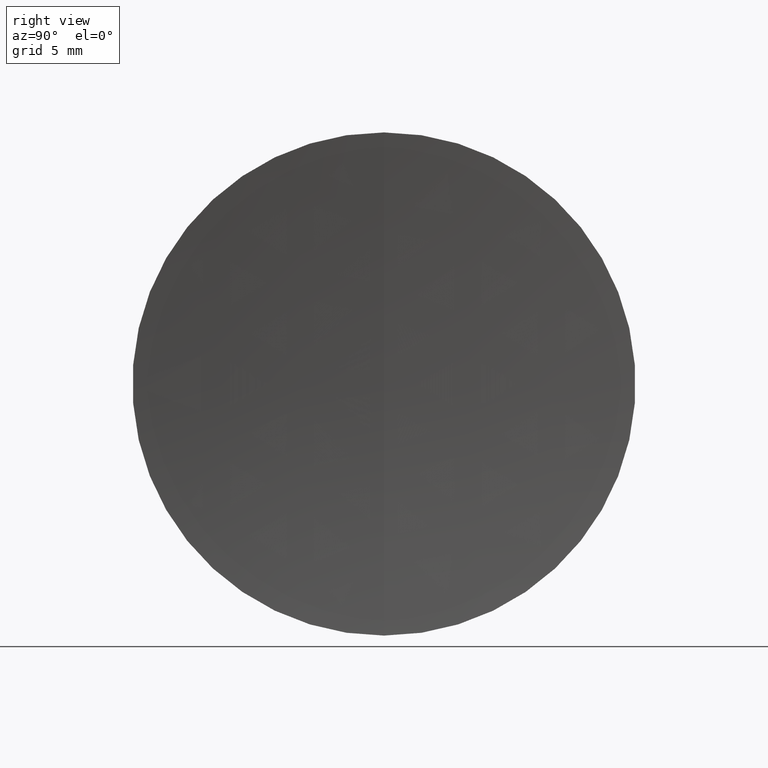
[diagram: clean part render]
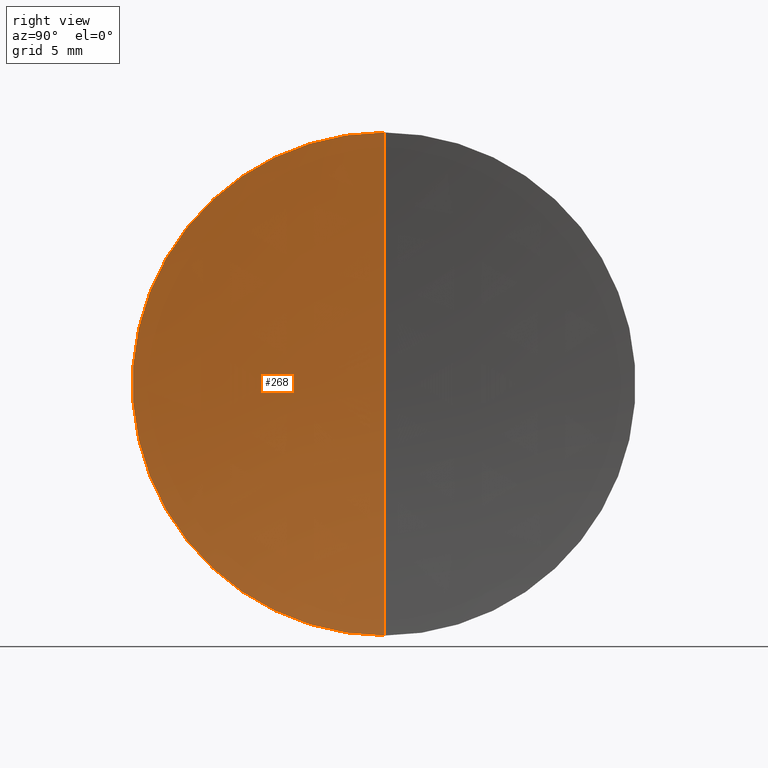
[diagram: same view with one face highlighted and labeled with its STEP entity id]
A machine part, right view. The second image highlights one B-rep face of the part: STEP entity #268.
In plain terms, the highlighted spherical surface has radius 108.6 mm.
Its self-contained STEP definition (entity closure, byte-faithful):
#1 = VERTEX_POINT ( 'NONE', #102 ) ;
#25 = DIRECTION ( 'NONE',  ( 0.0000000000000000000, 1.000000000000000000, -0.0000000000000000000 ) ) ;
#29 = CIRCLE ( 'NONE', #208, 108.5999999999999900 ) ;
#32 = CIRCLE ( 'NONE', #137, 108.5999999999999900 ) ;
#41 = CARTESIAN_POINT ( 'NONE',  ( 57.07234192546903300, 0.0000000000000000000, -12.70000000000000300 ) ) ;
#49 = DIRECTION ( 'NONE',  ( -0.0000000000000000000, -1.000000000000000000, -0.0000000000000000000 ) ) ;
#56 = VERTEX_POINT ( 'NONE', #41 ) ;
#73 = DIRECTION ( 'NONE',  ( 0.0000000000000000000, 1.224646799147353200E-016, -1.000000000000000000 ) ) ;
#97 = CARTESIAN_POINT ( 'NONE',  ( 164.9271980980123300, 0.0000000000000000000, 0.0000000000000000000 ) ) ;
#98 = CIRCLE ( 'NONE', #237, 12.70000000000002100 ) ;
#99 = CARTESIAN_POINT ( 'NONE',  ( 57.07234192546902600, 0.0000000000000000000, 0.0000000000000000000 ) ) ;
#102 = CARTESIAN_POINT ( 'NONE',  ( 57.07234192546903300, -1.555301434917139000E-015, 12.70000000000000300 ) ) ;
#108 = EDGE_LOOP ( 'NONE', ( #306, #320, #290 ) ) ;
#123 = EDGE_CURVE ( 'NONE', #56, #139, #29, .T. ) ;
#127 = DIRECTION ( 'NONE',  ( 0.0000000000000000000, 0.0000000000000000000, 1.000000000000000000 ) ) ;
#131 = EDGE_CURVE ( 'NONE', #56, #1, #98, .T. ) ;
#135 = CARTESIAN_POINT ( 'NONE',  ( 56.32719809801233200, 0.0000000000000000000, -6.649832119370127500E-015 ) ) ;
#137 = AXIS2_PLACEMENT_3D ( 'NONE', #97, #251, #73 ) ;
#139 = VERTEX_POINT ( 'NONE', #135 ) ;
#175 = SPHERICAL_SURFACE ( 'NONE', #189, 108.5999999999999900 ) ;
#189 = AXIS2_PLACEMENT_3D ( 'NONE', #277, #49, #248 ) ;
#207 = CARTESIAN_POINT ( 'NONE',  ( 164.9271980980123300, 0.0000000000000000000, 0.0000000000000000000 ) ) ;
#208 = AXIS2_PLACEMENT_3D ( 'NONE', #207, #25, #218 ) ;
#218 = DIRECTION ( 'NONE',  ( 0.0000000000000000000, 0.0000000000000000000, 1.000000000000000000 ) ) ;
#232 = EDGE_CURVE ( 'NONE', #1, #139, #32, .T. ) ;
#237 = AXIS2_PLACEMENT_3D ( 'NONE', #99, #304, #127 ) ;
#248 = DIRECTION ( 'NONE',  ( 0.0000000000000000000, 0.0000000000000000000, -1.000000000000000000 ) ) ;
#251 = DIRECTION ( 'NONE',  ( 0.0000000000000000000, -1.000000000000000000, -1.224646799147353200E-016 ) ) ;
#268 = ADVANCED_FACE ( 'NONE', ( #294 ), #175, .F. ) ;
#277 = CARTESIAN_POINT ( 'NONE',  ( 164.9271980980123300, 0.0000000000000000000, 0.0000000000000000000 ) ) ;
#290 = ORIENTED_EDGE ( 'NONE', *, *, #123, .T. ) ;
#294 = FACE_OUTER_BOUND ( 'NONE', #108, .T. ) ;
#304 = DIRECTION ( 'NONE',  ( -1.000000000000000000, -0.0000000000000000000, -0.0000000000000000000 ) ) ;
#306 = ORIENTED_EDGE ( 'NONE', *, *, #232, .F. ) ;
#320 = ORIENTED_EDGE ( 'NONE', *, *, #131, .F. ) ;